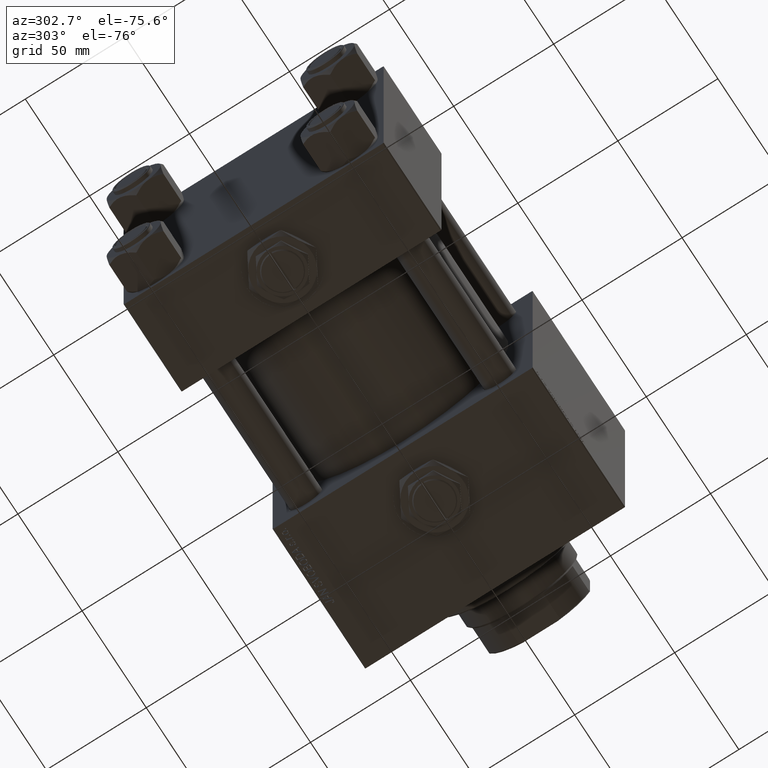
[diagram: clean part render]
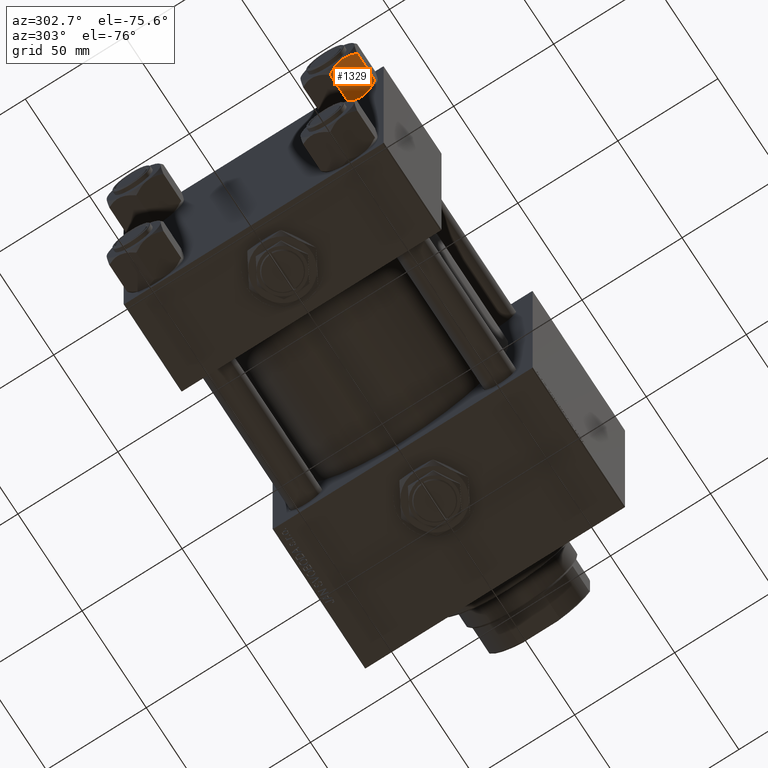
[diagram: same view with one face highlighted and labeled with its STEP entity id]
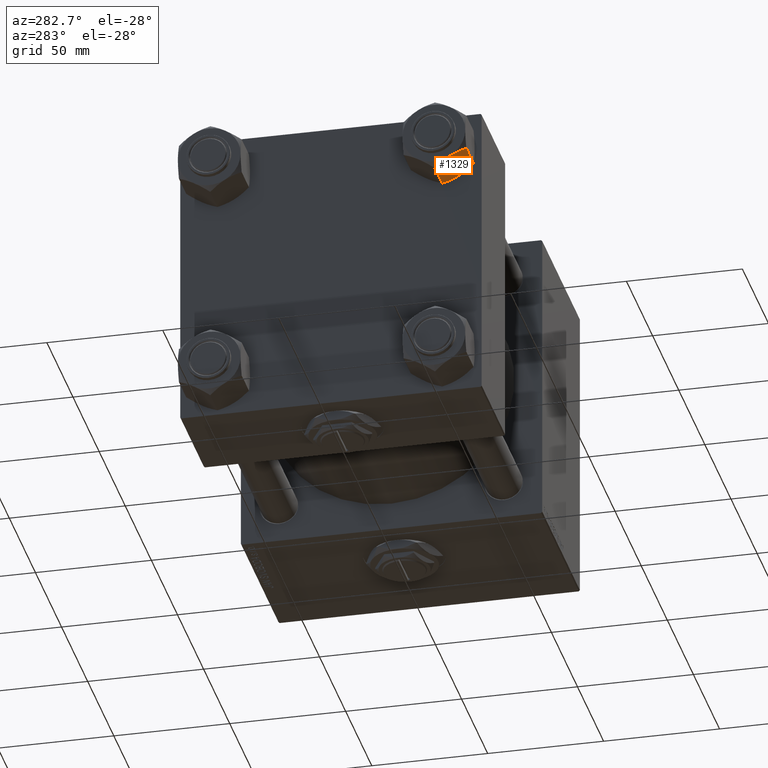
[diagram: same view with one face highlighted and labeled with its STEP entity id]
A machine part, auxiliary view. The second image highlights one B-rep face of the part: STEP entity #1329.
A second angle (auxiliary view) of the same face is appended — the face is thin or edge-on in the first view.
In plain terms, the highlighted planar face has unit normal (0, 0.5, 0.866).
Its self-contained STEP definition (entity closure, byte-faithful):
#231 = ORIENTED_EDGE ( 'NONE', *, *, #20143, .F. ) ;
#263 = CARTESIAN_POINT ( 'NONE',  ( 9.114548888011798411, 11.26777185211902221, -17.08577173959729478 ) ) ;
#1032 = CARTESIAN_POINT ( 'NONE',  ( 15.52647173767731736, 0.1619957022865213259, -16.00000000000000000 ) ) ;
#1054 = CARTESIAN_POINT ( 'NONE',  ( 11.04378428799595468, 7.926238119586002995, -17.94910618364697541 ) ) ;
#1199 = EDGE_CURVE ( 'NONE', #14011, #21044, #10926, .T. ) ;
#1329 = ADVANCED_FACE ( 'NONE', ( #44567 ), #26350, .F. ) ;
#3293 = ORIENTED_EDGE ( 'NONE', *, *, #52554, .F. ) ;
#3327 = VECTOR ( 'NONE', #45996, 999.9999999999998863 ) ;
#4002 = B_SPLINE_CURVE_WITH_KNOTS ( 'NONE', 3,
 ( #13327, #13068, #17339, #9334, #29639, #45664, #29901, #20820 ),
 .UNSPECIFIED., .F., .F.,
 ( 4, 2, 2, 4 ),
 ( 4.472842641970240738E-07, 0.003945636373369317863, 0.005918230917921878283, 0.007890825462474437835 ),
 .UNSPECIFIED. ) ;
#4059 = CARTESIAN_POINT ( 'NONE',  ( 11.71500000000000519, 6.763658403556469523, 0.000000000000000000 ) ) ;
#5021 = ORIENTED_EDGE ( 'NONE', *, *, #16707, .T. ) ;
#5071 = CARTESIAN_POINT ( 'NONE',  ( 10.06459418565413166, 9.622245127110598872, -17.61639331488792948 ) ) ;
#5504 = CARTESIAN_POINT ( 'NONE',  ( 15.62000000000000455, -1.379485931020374819E-15, -18.00000000000000000 ) ) ;
#5696 = CARTESIAN_POINT ( 'NONE',  ( 7.903528262322677023, 13.36532110482643176, -2.000000000000000000 ) ) ;
#5719 = EDGE_LOOP ( 'NONE', ( #30185, #5021, #24790, #34197, #26710, #44673, #3293, #231, #47381, #39593 ) ) ;
#5757 = VECTOR ( 'NONE', #12415, 1000.000000000000000 ) ;
#6658 = DIRECTION ( 'NONE',  ( 0.4999999999999999445, -0.8660254037844387076, 0.000000000000000000 ) ) ;
#7956 = VERTEX_POINT ( 'NONE', #17947 ) ;
#8622 = CARTESIAN_POINT ( 'NONE',  ( 7.810000000000001386, 13.52731680711293905, -16.00000000000000000 ) ) ;
#8849 = VERTEX_POINT ( 'NONE', #19076 ) ;
#9331 = CARTESIAN_POINT ( 'NONE',  ( 7.903528262322689457, 13.36532110482641045, -16.00000000000000000 ) ) ;
#9334 = CARTESIAN_POINT ( 'NONE',  ( 13.36540581434588049, 3.905071680002324630, -0.3836066851120584764 ) ) ;
#10024 = DIRECTION ( 'NONE',  ( -0.000000000000000000, -0.000000000000000000, 1.000000000000000000 ) ) ;
#10926 = LINE ( 'NONE', #23478, #52208 ) ;
#11365 = CARTESIAN_POINT ( 'NONE',  ( 11.05297796109638320, 7.910314210667883650, 2.165016213181991667E-15 ) ) ;
#12288 = CARTESIAN_POINT ( 'NONE',  ( 11.71499999999999453, 6.763658403556462417, -18.00000000000000000 ) ) ;
#12415 = DIRECTION ( 'NONE',  ( -0.000000000000000000, -0.000000000000000000, 1.000000000000000000 ) ) ;
#12579 = CARTESIAN_POINT ( 'NONE',  ( 12.37702203890362362, 5.617002596445057172, -17.99999999999999645 ) ) ;
#12853 = CARTESIAN_POINT ( 'NONE',  ( 7.810000000000000497, 13.52731680711293905, -1.999999999999998224 ) ) ;
#13068 = CARTESIAN_POINT ( 'NONE',  ( 14.92760668674625002, 1.199260397376449072, -1.411989271640066601 ) ) ;
#13105 = VERTEX_POINT ( 'NONE', #16726 ) ;
#13327 = CARTESIAN_POINT ( 'NONE',  ( 15.52647173767732980, 0.1619957022865022300, -2.000000000000000000 ) ) ;
#13371 = EDGE_CURVE ( 'NONE', #21698, #21551, #50113, .T. ) ;
#14011 = VERTEX_POINT ( 'NONE', #33308 ) ;
#15893 = CARTESIAN_POINT ( 'NONE',  ( 7.903528262322677023, 13.36532110482643176, -2.000000000000000000 ) ) ;
#16707 = EDGE_CURVE ( 'NONE', #14011, #38403, #24188, .T. ) ;
#16726 = CARTESIAN_POINT ( 'NONE',  ( 15.52647173767732980, 0.1619957022865022300, -2.000000000000000000 ) ) ;
#17339 = CARTESIAN_POINT ( 'NONE',  ( 14.31545111198821552, 2.259544954993893295, -0.9142282604026940040 ) ) ;
#17947 = CARTESIAN_POINT ( 'NONE',  ( 15.62000000000000455, -1.379485931020374819E-15, -1.999999999999998224 ) ) ;
#19076 = CARTESIAN_POINT ( 'NONE',  ( 11.71499999999999453, 6.763658403556462417, -18.00000000000000000 ) ) ;
#19762 = CARTESIAN_POINT ( 'NONE',  ( 7.810000000000001386, 13.52731680711293905, -1.999999999999998224 ) ) ;
#19819 = CARTESIAN_POINT ( 'NONE',  ( 13.99051971937273464, 2.822342635978018599, -17.26828031537187513 ) ) ;
#20143 = EDGE_CURVE ( 'NONE', #24490, #24147, #50268, .T. ) ;
#20186 = EDGE_CURVE ( 'NONE', #21551, #38403, #45733, .T. ) ;
#20820 = CARTESIAN_POINT ( 'NONE',  ( 11.71500000000000519, 6.763658403556469523, 0.000000000000000000 ) ) ;
#21044 = VERTEX_POINT ( 'NONE', #43267 ) ;
#21551 = VERTEX_POINT ( 'NONE', #5696 ) ;
#21698 = VERTEX_POINT ( 'NONE', #4059 ) ;
#22571 = LINE ( 'NONE', #5504, #36347 ) ;
#23478 = CARTESIAN_POINT ( 'NONE',  ( 7.810000000000001386, 13.52731680711293905, -16.00000000000000000 ) ) ;
#24147 = VERTEX_POINT ( 'NONE', #37436 ) ;
#24188 = LINE ( 'NONE', #28717, #5757 ) ;
#24490 = VERTEX_POINT ( 'NONE', #1032 ) ;
#24790 = ORIENTED_EDGE ( 'NONE', *, *, #20186, .F. ) ;
#26350 = PLANE ( 'NONE',  #42823 ) ;
#26710 = ORIENTED_EDGE ( 'NONE', *, *, #39589, .F. ) ;
#26880 = B_SPLINE_CURVE_WITH_KNOTS ( 'NONE', 3,
 ( #9331, #36872, #263, #5071, #48888, #1054, #41139, #12288 ),
 .UNSPECIFIED., .F., .F.,
 ( 4, 2, 2, 4 ),
 ( 4.472842641813524291E-07, 0.003945636373369291842, 0.005918230917921843588, 0.007890825462474394467 ),
 .UNSPECIFIED. ) ;
#27656 = CARTESIAN_POINT ( 'NONE',  ( 9.124083218049239719, 11.25125790807803483, -0.9473872146228128344 ) ) ;
#28108 = CARTESIAN_POINT ( 'NONE',  ( 14.30591678195075467, 2.276058899034909544, -17.05261278537717828 ) ) ;
#28285 = VECTOR ( 'NONE', #52347, 999.9999999999998863 ) ;
#28717 = CARTESIAN_POINT ( 'NONE',  ( 7.810000000000001386, 13.52731680711293905, -18.00000000000000000 ) ) ;
#28890 = CARTESIAN_POINT ( 'NONE',  ( 13.02784502466562877, 4.489744118371592485, -17.80281335400753662 ) ) ;
#29147 = CARTESIAN_POINT ( 'NONE',  ( 14.92394044919337937, 1.205610507090647987, -16.56553707812500065 ) ) ;
#29450 = DIRECTION ( 'NONE',  ( 0.4999999999999999445, -0.8660254037844387076, 0.000000000000000000 ) ) ;
#29639 = CARTESIAN_POINT ( 'NONE',  ( 13.04337073483128506, 4.462852799541082938, -0.2430846701012968347 ) ) ;
#29710 = CARTESIAN_POINT ( 'NONE',  ( 7.810000000000001386, 13.52731680711293905, -1.999999999999998224 ) ) ;
#29901 = CARTESIAN_POINT ( 'NONE',  ( 12.04818928091285812, 6.186557640478062225, 2.165016213181991667E-15 ) ) ;
#30185 = ORIENTED_EDGE ( 'NONE', *, *, #1199, .F. ) ;
#33308 = CARTESIAN_POINT ( 'NONE',  ( 7.810000000000000497, 13.52731680711293905, -16.00000000000000000 ) ) ;
#34197 = ORIENTED_EDGE ( 'NONE', *, *, #13371, .F. ) ;
#34371 = DIRECTION ( 'NONE',  ( 0.4999999999999998890, -0.8660254037844385966, 0.000000000000000000 ) ) ;
#35733 = VECTOR ( 'NONE', #29450, 999.9999999999998863 ) ;
#36347 = VECTOR ( 'NONE', #10024, 1000.000000000000000 ) ;
#36872 = CARTESIAN_POINT ( 'NONE',  ( 8.502393313253767460, 12.32805640973646710, -16.58801072835993295 ) ) ;
#36908 = CARTESIAN_POINT ( 'NONE',  ( 11.71499999999999453, 6.763658403556462417, -18.00000000000000000 ) ) ;
#37436 = CARTESIAN_POINT ( 'NONE',  ( 15.62000000000000455, -1.379485931020374819E-15, -16.00000000000000000 ) ) ;
#38391 = CARTESIAN_POINT ( 'NONE',  ( 7.810000000000001386, 13.52731680711293905, -18.00000000000000000 ) ) ;
#38403 = VERTEX_POINT ( 'NONE', #12853 ) ;
#39589 = EDGE_CURVE ( 'NONE', #13105, #21698, #4002, .T. ) ;
#39593 = ORIENTED_EDGE ( 'NONE', *, *, #40700, .F. ) ;
#40213 = CARTESIAN_POINT ( 'NONE',  ( 10.40215497533437450, 9.037572688741345672, -0.1971866459924547788 ) ) ;
#40401 = CARTESIAN_POINT ( 'NONE',  ( 15.22736220980734778, 0.6800686015852424049, -16.29368822085855584 ) ) ;
#40474 = CARTESIAN_POINT ( 'NONE',  ( 8.202637790192646605, 12.84724820552771085, -1.706311779141445717 ) ) ;
#40659 = CARTESIAN_POINT ( 'NONE',  ( 15.52647173767731736, 0.1619957022865213259, -16.00000000000000000 ) ) ;
#40700 = EDGE_CURVE ( 'NONE', #21044, #8849, #26880, .T. ) ;
#40732 = CARTESIAN_POINT ( 'NONE',  ( 11.71500000000000519, 6.763658403556469523, 0.000000000000000000 ) ) ;
#41139 = CARTESIAN_POINT ( 'NONE',  ( 11.38181071908714692, 7.340759166634869715, -17.99999999999998224 ) ) ;
#41388 = LINE ( 'NONE', #19762, #28285 ) ;
#42823 = AXIS2_PLACEMENT_3D ( 'NONE', #38391, #50399, #34371 ) ;
#43146 = EDGE_CURVE ( 'NONE', #8849, #24490, #49162, .T. ) ;
#43267 = CARTESIAN_POINT ( 'NONE',  ( 7.903528262322689457, 13.36532110482641045, -16.00000000000000000 ) ) ;
#44282 = EDGE_CURVE ( 'NONE', #7956, #13105, #41388, .T. ) ;
#44472 = CARTESIAN_POINT ( 'NONE',  ( 8.506059550806622127, 12.32170630002230283, -1.434462921875002683 ) ) ;
#44567 = FACE_OUTER_BOUND ( 'NONE', #5719, .T. ) ;
#44673 = ORIENTED_EDGE ( 'NONE', *, *, #44282, .F. ) ;
#45664 = CARTESIAN_POINT ( 'NONE',  ( 12.38621571200405924, 5.601078687526928945, -0.05089381635301384876 ) ) ;
#45733 = LINE ( 'NONE', #29710, #3327 ) ;
#45996 = DIRECTION ( 'NONE',  ( -0.4999999999999999445, 0.8660254037844387076, 0.000000000000000000 ) ) ;
#47381 = ORIENTED_EDGE ( 'NONE', *, *, #43146, .F. ) ;
#48224 = CARTESIAN_POINT ( 'NONE',  ( 9.439480280627263298, 10.70497417113492489, -0.7317196846281137645 ) ) ;
#48888 = CARTESIAN_POINT ( 'NONE',  ( 10.38662926516872886, 9.064464007571846338, -17.75691532989869614 ) ) ;
#49162 = B_SPLINE_CURVE_WITH_KNOTS ( 'NONE', 3,
 ( #36908, #12579, #28890, #19819, #28108, #29147, #40401, #40659 ),
 .UNSPECIFIED., .F., .F.,
 ( 4, 2, 2, 4 ),
 ( 0.007890825462474394467, 0.01181022244528549814, 0.01376992093669104911, 0.01572961942809660008 ),
 .UNSPECIFIED. ) ;
#50113 = B_SPLINE_CURVE_WITH_KNOTS ( 'NONE', 3,
 ( #40732, #11365, #40213, #48224, #27656, #44472, #40474, #15893 ),
 .UNSPECIFIED., .F., .F.,
 ( 4, 2, 2, 4 ),
 ( 0.007890825462474437835, 0.01181022244528555538, 0.01376992093669111156, 0.01572961942809666946 ),
 .UNSPECIFIED. ) ;
#50268 = LINE ( 'NONE', #8622, #35733 ) ;
#50399 = DIRECTION ( 'NONE',  ( -0.8660254037844387076, -0.4999999999999999445, 0.000000000000000000 ) ) ;
#52208 = VECTOR ( 'NONE', #6658, 999.9999999999998863 ) ;
#52347 = DIRECTION ( 'NONE',  ( -0.4999999999999999445, 0.8660254037844387076, 0.000000000000000000 ) ) ;
#52554 = EDGE_CURVE ( 'NONE', #24147, #7956, #22571, .T. ) ;